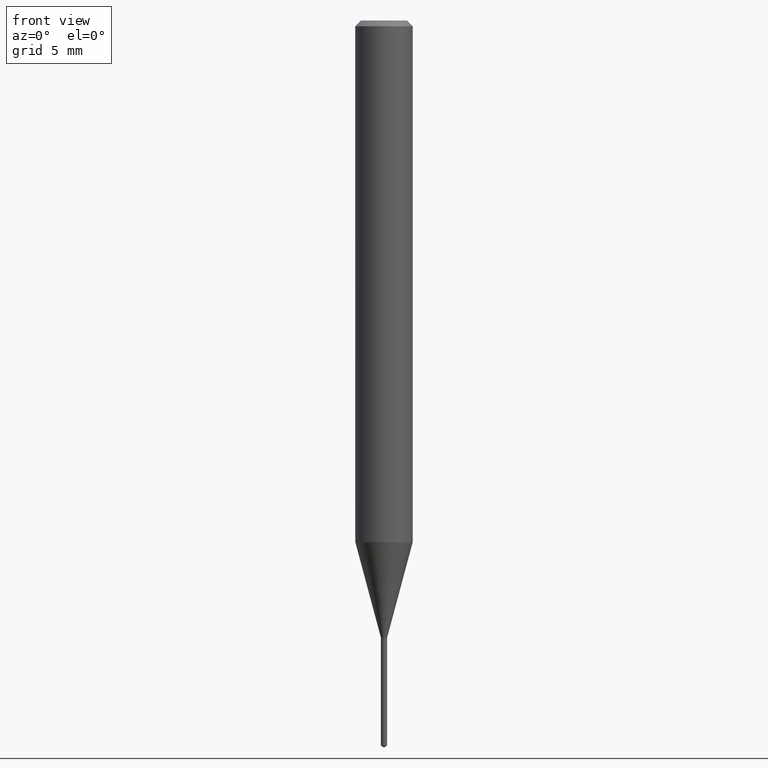
[diagram: clean part render]
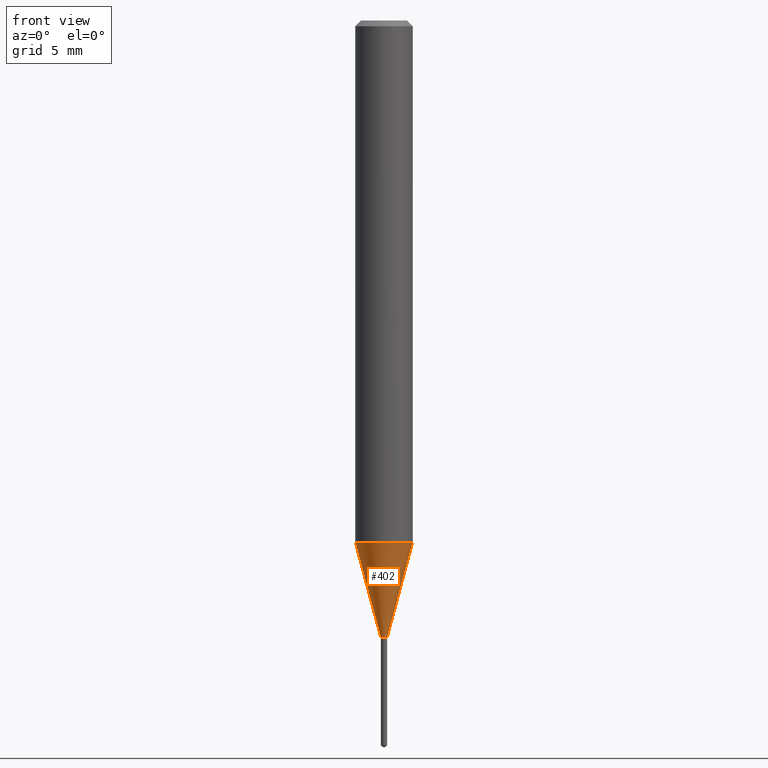
[diagram: same view with one face highlighted and labeled with its STEP entity id]
A machine part, front view. The second image highlights one B-rep face of the part: STEP entity #402.
In plain terms, the highlighted conical surface has half-angle 15 deg.
Its self-contained STEP definition (entity closure, byte-faithful):
#7 = CARTESIAN_POINT ( 'NONE',  ( 0.05905000000000014404, -4.160731030871339348E-15, -1.073580730062255295 ) ) ;
#21 = VECTOR ( 'NONE', #444, 39.37007874015747433 ) ;
#23 = CARTESIAN_POINT ( 'NONE',  ( 3.105011743213267483E-29, -4.433133855929141290E-15, -1.269699999999999829 ) ) ;
#24 = EDGE_CURVE ( 'NONE', #307, #88, #36, .T. ) ;
#36 = LINE ( 'NONE', #183, #328 ) ;
#38 = DIRECTION ( 'NONE',  ( 1.000000000000000000, -6.982962677686265133E-15, 0.000000000000000000 ) ) ;
#48 = EDGE_LOOP ( 'NONE', ( #96, #117, #454, #57 ) ) ;
#57 = ORIENTED_EDGE ( 'NONE', *, *, #71, .F. ) ;
#71 = EDGE_CURVE ( 'NONE', #88, #230, #358, .T. ) ;
#72 = CARTESIAN_POINT ( 'NONE',  ( 3.105011743213267483E-29, -4.433133855929141290E-15, -1.269699999999999829 ) ) ;
#88 = VERTEX_POINT ( 'NONE', #412 ) ;
#96 = ORIENTED_EDGE ( 'NONE', *, *, #24, .F. ) ;
#106 = DIRECTION ( 'NONE',  ( -2.445468806185136597E-29, 3.491481338843145583E-15, 1.000000000000000000 ) ) ;
#111 = EDGE_CURVE ( 'NONE', #324, #230, #337, .T. ) ;
#117 = ORIENTED_EDGE ( 'NONE', *, *, #484, .T. ) ;
#183 = CARTESIAN_POINT ( 'NONE',  ( -0.006499999999999998834, -4.386948578104734342E-15, -1.269699999999999829 ) ) ;
#193 = CONICAL_SURFACE ( 'NONE', #487, 0.006499999999999998834, 0.2617993877991500740 ) ;
#211 = DIRECTION ( 'NONE',  ( -2.445468806185136597E-29, 3.491481338843145583E-15, 1.000000000000000000 ) ) ;
#230 = VERTEX_POINT ( 'NONE', #7 ) ;
#305 = CARTESIAN_POINT ( 'NONE',  ( 2.625408186288710950E-29, -3.748387084753965216E-15, -1.073580730062255295 ) ) ;
#307 = VERTEX_POINT ( 'NONE', #319 ) ;
#319 = CARTESIAN_POINT ( 'NONE',  ( -0.006499999999999998834, -4.389567189108866992E-15, -1.269699999999999829 ) ) ;
#320 = AXIS2_PLACEMENT_3D ( 'NONE', #305, #453, #38 ) ;
#324 = VERTEX_POINT ( 'NONE', #430 ) ;
#328 = VECTOR ( 'NONE', #340, 39.37007874015747433 ) ;
#331 = DIRECTION ( 'NONE',  ( 1.000000000000000000, -6.982962677686258822E-15, 0.000000000000000000 ) ) ;
#337 = LINE ( 'NONE', #443, #21 ) ;
#340 = DIRECTION ( 'NONE',  ( -0.2588190451025213501, 5.211531920934551042E-15, 0.9659258262890682012 ) ) ;
#358 = CIRCLE ( 'NONE', #320, 0.05905000000000013016 ) ;
#366 = DIRECTION ( 'NONE',  ( 1.000000000000000000, -6.982962677686258822E-15, 0.000000000000000000 ) ) ;
#402 = ADVANCED_FACE ( 'NONE', ( #474 ), #193, .T. ) ;
#412 = CARTESIAN_POINT ( 'NONE',  ( -0.05905000000000014404, -3.328811599287623751E-15, -1.073580730062255295 ) ) ;
#417 = CIRCLE ( 'NONE', #425, 0.006499999999999998834 ) ;
#425 = AXIS2_PLACEMENT_3D ( 'NONE', #72, #106, #331 ) ;
#430 = CARTESIAN_POINT ( 'NONE',  ( 0.006499999999999998834, -4.478523113334101960E-15, -1.269699999999999829 ) ) ;
#443 = CARTESIAN_POINT ( 'NONE',  ( 0.006499999999999998834, -4.478523113334101960E-15, -1.269699999999999829 ) ) ;
#444 = DIRECTION ( 'NONE',  ( 0.2588190451025213501, 1.565188264969621968E-15, 0.9659258262890682012 ) ) ;
#453 = DIRECTION ( 'NONE',  ( -2.445468806185136597E-29, 3.491481338843145583E-15, 1.000000000000000000 ) ) ;
#454 = ORIENTED_EDGE ( 'NONE', *, *, #111, .T. ) ;
#474 = FACE_OUTER_BOUND ( 'NONE', #48, .T. ) ;
#484 = EDGE_CURVE ( 'NONE', #307, #324, #417, .T. ) ;
#487 = AXIS2_PLACEMENT_3D ( 'NONE', #23, #211, #366 ) ;